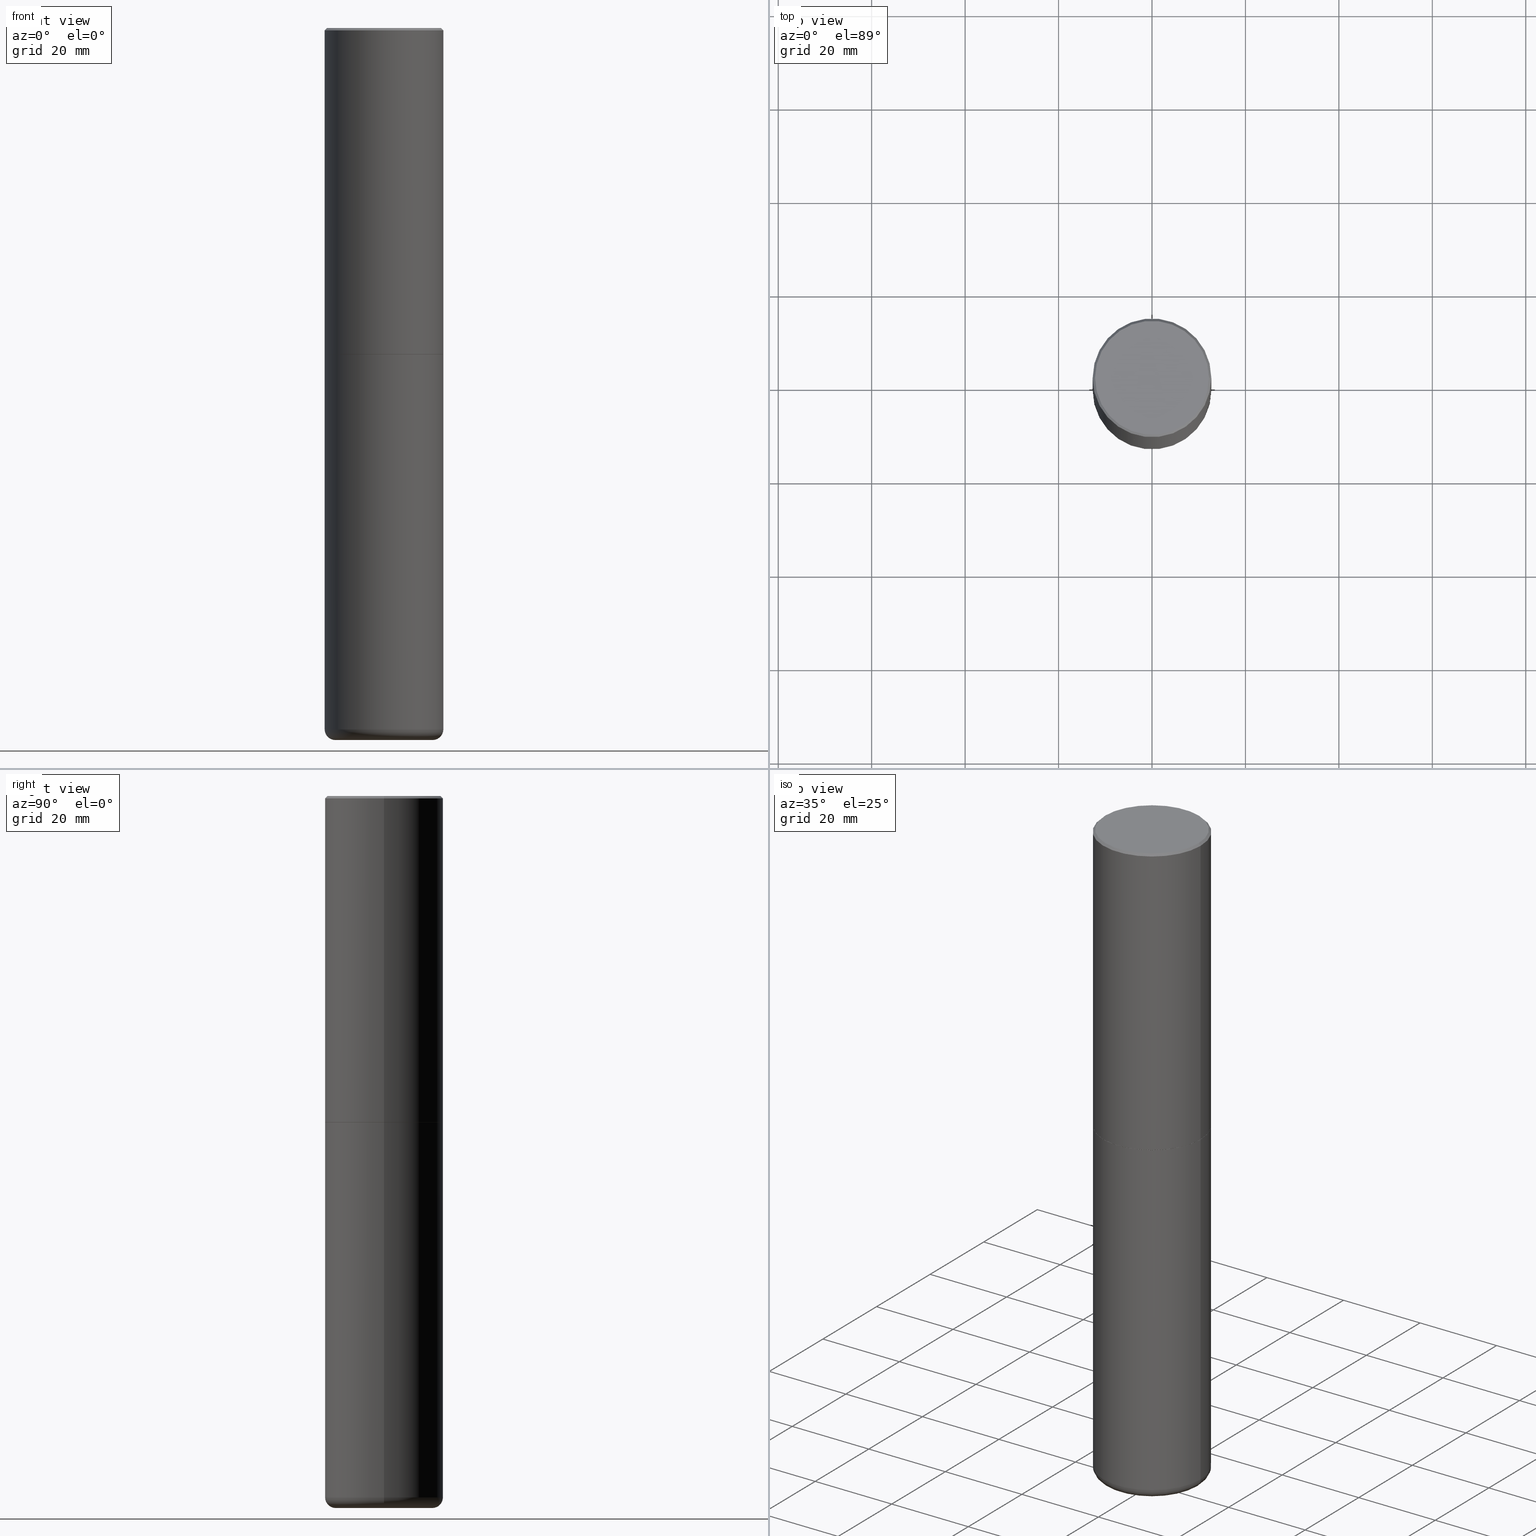
[diagram: canonical four-view strip — front | top / right | iso, engineering-drawing reading convention]
A machine part, canonical four-view strip (front | top / right | iso — engineering-drawing reading convention). The complete STEP part file that produces these views, byte-faithful:
ISO-10303-21;
HEADER;
FILE_DESCRIPTION (( 'STEP AP203' ),
    '1' );
FILE_NAME ('35651.STEP',
    '2022-11-02T20:35:46',
    ( '' ),
    ( '' ),
    'SwSTEP 2.0',
    'SolidWorks 2022',
    '' );
FILE_SCHEMA (( 'CONFIG_CONTROL_DESIGN' ));
ENDSEC;

DATA;
#1 = ORIENTED_EDGE ( 'NONE', *, *, #227, .F. ) ;
#2 = EDGE_LOOP ( 'NONE', ( #228, #397, #401, #3 ) ) ;
#3 = ORIENTED_EDGE ( 'NONE', *, *, #295, .F. ) ;
#4 = CARTESIAN_POINT ( 'NONE',  ( 1.467281283711081734E-28, -2.094888803305886955E-14, -5.999999999999999112 ) ) ;
#5 = VERTEX_POINT ( 'NONE', #353 ) ;
#6 = PLANE ( 'NONE',  #326 ) ;
#7 = EDGE_CURVE ( 'NONE', #250, #310, #482, .T. ) ;
#8 = PERSON_AND_ORGANIZATION_ROLE ( 'creator' ) ;
#9 = ORIENTED_EDGE ( 'NONE', *, *, #119, .F. ) ;
#10 = FACE_OUTER_BOUND ( 'NONE', #418, .T. ) ;
#11 = FACE_OUTER_BOUND ( 'NONE', #380, .T. ) ;
#12 = VERTEX_POINT ( 'NONE', #338 ) ;
#13 = FACE_OUTER_BOUND ( 'NONE', #309, .T. ) ;
#14 = ORIENTED_EDGE ( 'NONE', *, *, #84, .F. ) ;
#15 = FACE_OUTER_BOUND ( 'NONE', #162, .T. ) ;
#16 = LINE ( 'NONE', #364, #232 ) ;
#17 = CALENDAR_DATE ( 2022, 2, 11 ) ;
#18 = CARTESIAN_POINT ( 'NONE',  ( 0.000000000000000000, 0.000000000000000000, 0.000000000000000000 ) ) ;
#19 = EDGE_CURVE ( 'NONE', #236, #433, #411, .T. ) ;
#20 = EDGE_CURVE ( 'NONE', #62, #12, #445, .T. ) ;
#21 = VECTOR ( 'NONE', #52, 39.37007874015747433 ) ;
#22 = CONICAL_SURFACE ( 'NONE', #375, 0.4999999999999990563, 0.7853981633974465026 ) ;
#23 = DIRECTION ( 'NONE',  ( 1.000000000000000000, -6.982962677686265133E-15, 0.000000000000000000 ) ) ;
#24 = ADVANCED_FACE ( 'NONE', ( #362 ), #86, .T. ) ;
#25 = DIRECTION ( 'NONE',  ( -2.445468806185136877E-29, 3.491481338843145188E-15, 1.000000000000000000 ) ) ;
#26 = APPROVAL_ROLE ( '' ) ;
#27 = ORIENTED_EDGE ( 'NONE', *, *, #19, .F. ) ;
#28 = AXIS2_PLACEMENT_3D ( 'NONE', #93, #474, #173 ) ;
#29 = DIRECTION ( 'NONE',  ( -6.982962677686266711E-15, -1.000000000000000000, 3.491481338843145583E-15 ) ) ;
#30 = ORIENTED_EDGE ( 'NONE', *, *, #108, .F. ) ;
#31 = CARTESIAN_POINT ( 'NONE',  ( 1.467281283711081734E-28, -2.094888803305886955E-14, -5.999999999999999112 ) ) ;
#32 = CIRCLE ( 'NONE', #456, 0.5000000000000001110 ) ;
#33 = DIRECTION ( 'NONE',  ( 1.000000000000000000, -6.982962677686266711E-15, 0.000000000000000000 ) ) ;
#34 = AXIS2_PLACEMENT_3D ( 'NONE', #128, #167, #442 ) ;
#35 = ORIENTED_EDGE ( 'NONE', *, *, #100, .F. ) ;
#36 = AXIS2_PLACEMENT_3D ( 'NONE', #488, #150, #78 ) ;
#37 = CARTESIAN_POINT ( 'NONE',  ( 4.890937612370318701E-31, -6.982962677686356937E-17, -0.02000000000000018777 ) ) ;
#38 = ORIENTED_EDGE ( 'NONE', *, *, #100, .T. ) ;
#39 = ORIENTED_EDGE ( 'NONE', *, *, #20, .F. ) ;
#40 = ADVANCED_FACE ( 'NONE', ( #133 ), #382, .F. ) ;
#41 = ORIENTED_EDGE ( 'NONE', *, *, #480, .F. ) ;
#42 = APPROVAL_ROLE ( '' ) ;
#43 = DIRECTION ( 'NONE',  ( -2.445468806185136597E-29, 3.491481338843145583E-15, 1.000000000000000000 ) ) ;
#44 = CARTESIAN_POINT ( 'NONE',  ( 1.445272902499044541E-28, -2.063466667760496652E-14, -5.910003426924223646 ) ) ;
#45 = CC_DESIGN_PERSON_AND_ORGANIZATION_ASSIGNMENT ( #296, #226, ( #139 ) ) ;
#46 = CARTESIAN_POINT ( 'NONE',  ( 0.000000000000000000, 0.000000000000000000, 0.000000000000000000 ) ) ;
#47 = LOCAL_TIME ( 16, 35, 46.00000000000000000, #181 ) ;
#48 = DIRECTION ( 'NONE',  ( -2.445468806185136597E-29, 3.491481338843145583E-15, 1.000000000000000000 ) ) ;
#49 = CARTESIAN_POINT ( 'NONE',  ( 1.467167470649067006E-28, -2.094726308416916987E-14, -5.999534596140719600 ) ) ;
#50 = LOCAL_TIME ( 16, 35, 46.00000000000000000, #189 ) ;
#51 = ORIENTED_EDGE ( 'NONE', *, *, #258, .T. ) ;
#52 = DIRECTION ( 'NONE',  ( 0.9993908270190957621, -6.978169709227547799E-15, -0.03489949670250264147 ) ) ;
#53 = DIRECTION ( 'NONE',  ( 2.445468806185136597E-29, -3.491481338843145583E-15, -1.000000000000000000 ) ) ;
#54 = CARTESIAN_POINT ( 'NONE',  ( -0.4999999999999990563, 3.421651712066263352E-15, -0.02000000000000018777 ) ) ;
#55 = DIRECTION ( 'NONE',  ( -2.445468806185136597E-29, 3.491481338843145583E-15, 1.000000000000000000 ) ) ;
#56 = CIRCLE ( 'NONE', #216, 0.4989999999999999991 ) ;
#57 = AXIS2_PLACEMENT_3D ( 'NONE', #290, #487, #265 ) ;
#58 = CARTESIAN_POINT ( 'NONE',  ( 0.4999999999999995004, -3.491481338843130200E-15, 2.438088387897965374E-29 ) ) ;
#59 = CARTESIAN_POINT ( 'NONE',  ( 0.000000000000000000, 0.000000000000000000, 0.000000000000000000 ) ) ;
#60 = AXIS2_PLACEMENT_3D ( 'NONE', #88, #48, #301 ) ;
#61 = CIRCLE ( 'NONE', #136, 0.4999999999999990563 ) ;
#62 = VERTEX_POINT ( 'NONE', #241 ) ;
#63 = DIRECTION ( 'NONE',  ( -2.445468806185136597E-29, 3.491481338843145583E-15, 1.000000000000000000 ) ) ;
#64 = COORDINATED_UNIVERSAL_TIME_OFFSET ( 5, 0, .BEHIND. ) ;
#65 = ADVANCED_FACE ( 'NONE', ( #156 ), #471, .T. ) ;
#66 = VERTEX_POINT ( 'NONE', #333 ) ;
#67 = AXIS2_PLACEMENT_3D ( 'NONE', #404, #211, #360 ) ;
#68 = APPROVAL_PERSON_ORGANIZATION ( #190, #220, #26 ) ;
#69 = CC_DESIGN_PERSON_AND_ORGANIZATION_ASSIGNMENT ( #115, #462, ( #272 ) ) ;
#70 = CALENDAR_DATE ( 2022, 2, 11 ) ;
#71 = PRODUCT_DEFINITION_SHAPE ( 'NONE', 'NONE',  #187 ) ;
#72 = EDGE_LOOP ( 'NONE', ( #120, #169, #35 ) ) ;
#73 = DIRECTION ( 'NONE',  ( 0.7071067811865462405, -7.319954787623251312E-15, -0.7071067811865487940 ) ) ;
#74 = CIRCLE ( 'NONE', #432, 0.4999999999999990563 ) ;
#75 = ORIENTED_EDGE ( 'NONE', *, *, #337, .F. ) ;
#76 = ORIENTED_EDGE ( 'NONE', *, *, #237, .T. ) ;
#77 = CIRCLE ( 'NONE', #293, 0.5000000000000000000 ) ;
#78 = DIRECTION ( 'NONE',  ( 1.000000000000000000, -6.982962677686265133E-15, 4.883557194083112340E-29 ) ) ;
#79 = ORIENTED_EDGE ( 'NONE', *, *, #287, .T. ) ;
#80 = DATE_TIME_ROLE ( 'classification_date' ) ;
#81 = CARTESIAN_POINT ( 'NONE',  ( 4.890937612370318701E-31, -6.982962677686356937E-17, -0.02000000000000018777 ) ) ;
#82 = DIRECTION ( 'NONE',  ( 1.000000000000000000, -6.982962677686269077E-15, 0.000000000000000000 ) ) ;
#83 = ADVANCED_FACE ( 'NONE', ( #317 ), #291, .T. ) ;
#84 = EDGE_CURVE ( 'NONE', #383, #466, #137, .T. ) ;
#85 = ORIENTED_EDGE ( 'NONE', *, *, #335, .T. ) ;
#86 = CYLINDRICAL_SURFACE ( 'NONE', #28, 0.4999999999999995004 ) ;
#87 = DIRECTION ( 'NONE',  ( 7.105427357601001859E-15, 1.000000000000000000, -3.491481338843145583E-15 ) ) ;
#88 = CARTESIAN_POINT ( 'NONE',  ( 1.467167470649067006E-28, -2.094726308416916987E-14, -5.999534596140719600 ) ) ;
#89 = LINE ( 'NONE', #409, #428 ) ;
#90 = APPROVAL_DATE_TIME ( #180, #434 ) ;
#91 = VECTOR ( 'NONE', #410, 39.37007874015747433 ) ;
#92 = ORIENTED_EDGE ( 'NONE', *, *, #341, .T. ) ;
#93 = CARTESIAN_POINT ( 'NONE',  ( 0.000000000000000000, 0.000000000000000000, 0.000000000000000000 ) ) ;
#94 = EDGE_CURVE ( 'NONE', #213, #236, #107, .T. ) ;
#95 = FACE_OUTER_BOUND ( 'NONE', #246, .T. ) ;
#96 = CARTESIAN_POINT ( 'NONE',  ( 3.351822085289400054E-15, 0.4799999999999989275, -1.669508273909555500E-15 ) ) ;
#97 = CIRCLE ( 'NONE', #314, 0.09000000000000060729 ) ;
#98 = PERSON ( 'UNSPECIFIED', 'UNSPECIFIED', 'UNSPECIFIED', ('UNSPECIFIED'), ('UNSPECIFIED'), ('UNSPECIFIED') ) ;
#99 = DIRECTION ( 'NONE',  ( 1.000000000000000000, -6.982962677686267499E-15, 4.876176775795935793E-29 ) ) ;
#100 = EDGE_CURVE ( 'NONE', #390, #213, #460, .T. ) ;
#101 = AXIS2_PLACEMENT_3D ( 'NONE', #284, #289, #23 ) ;
#102 = VECTOR ( 'NONE', #25, 39.37007874015748143 ) ;
#103 = APPROVAL_PERSON_ORGANIZATION ( #245, #434, #42 ) ;
#104 = CARTESIAN_POINT ( 'NONE',  ( 0.4100000000000003642, -2.349768137545633650E-14, -5.910003426924223646 ) ) ;
#105 = DIRECTION ( 'NONE',  ( -0.9999619230641714207, 6.952228252019259966E-15, -0.008726535498348361383 ) ) ;
#106 = ORIENTED_EDGE ( 'NONE', *, *, #414, .T. ) ;
#107 = LINE ( 'NONE', #363, #448 ) ;
#108 = EDGE_CURVE ( 'NONE', #66, #383, #324, .T. ) ;
#109 = AXIS2_PLACEMENT_3D ( 'NONE', #174, #171, #320 ) ;
#110 = CIRCLE ( 'NONE', #125, 0.4799999999999989275 ) ;
#111 = AXIS2_PLACEMENT_3D ( 'NONE', #161, #172, #281 ) ;
#112 = EDGE_LOOP ( 'NONE', ( #79, #85, #282, #422 ) ) ;
#113 = EDGE_CURVE ( 'NONE', #385, #390, #355, .T. ) ;
#114 = DIRECTION ( 'NONE',  ( -2.445468806185136597E-29, 3.491481338843145583E-15, 1.000000000000000000 ) ) ;
#115 = PERSON_AND_ORGANIZATION ( #98, #251 ) ;
#116 = AXIS2_PLACEMENT_3D ( 'NONE', #403, #87, #276 ) ;
#117 = ADVANCED_FACE ( 'NONE', ( #11 ), #329, .F. ) ;
#118 = LINE ( 'NONE', #155, #489 ) ;
#119 = EDGE_CURVE ( 'NONE', #5, #62, #450, .T. ) ;
#120 = ORIENTED_EDGE ( 'NONE', *, *, #113, .F. ) ;
#121 = CARTESIAN_POINT ( 'NONE',  ( 6.722593748202942280E-29, -9.598082200479810007E-15, -2.749000000000000554 ) ) ;
#122 = FACE_OUTER_BOUND ( 'NONE', #72, .T. ) ;
#123 = ORIENTED_EDGE ( 'NONE', *, *, #124, .F. ) ;
#124 = EDGE_CURVE ( 'NONE', #385, #213, #248, .T. ) ;
#125 = AXIS2_PLACEMENT_3D ( 'NONE', #332, #490, #218 ) ;
#126 = DIRECTION ( 'NONE',  ( 1.000000000000000000, -6.982962677686269077E-15, 0.000000000000000000 ) ) ;
#127 = ORIENTED_EDGE ( 'NONE', *, *, #492, .T. ) ;
#128 = CARTESIAN_POINT ( 'NONE',  ( 3.491481338843200408E-15, 0.4999999999999903411, -2.750000000000002220 ) ) ;
#129 = DIRECTION ( 'NONE',  ( -2.445468806185136597E-29, 3.491481338843145583E-15, 1.000000000000000000 ) ) ;
#130 = ORIENTED_EDGE ( 'NONE', *, *, #369, .F. ) ;
#131 = CYLINDRICAL_SURFACE ( 'NONE', #305, 0.4999999999999995004 ) ;
#132 = EDGE_CURVE ( 'NONE', #433, #236, #372, .T. ) ;
#133 = FACE_OUTER_BOUND ( 'NONE', #452, .T. ) ;
#134 = DIRECTION ( 'NONE',  ( -1.000000000000000000, 6.982962677686266711E-15, 0.000000000000000000 ) ) ;
#135 = DIRECTION ( 'NONE',  ( 1.000000000000000000, -6.982962677686265133E-15, 0.000000000000000000 ) ) ;
#136 = AXIS2_PLACEMENT_3D ( 'NONE', #37, #199, #203 ) ;
#137 = LINE ( 'NONE', #145, #330 ) ;
#138 = ADVANCED_FACE ( 'NONE', ( #15 ), #475, .T. ) ;
#139 = PRODUCT ( '35651', '35651', '', ( #300 ) ) ;
#140 = CLOSED_SHELL ( 'NONE', ( #147, #141, #138, #468, #24, #83, #312, #298 ) ) ;
#141 = ADVANCED_FACE ( 'NONE', ( #322 ), #131, .T. ) ;
#142 = CIRCLE ( 'NONE', #461, 0.5000000000000000000 ) ;
#143 = CALENDAR_DATE ( 2022, 2, 11 ) ;
#144 = DIRECTION ( 'NONE',  ( 1.000000000000000000, -6.982962677686264344E-15, 0.000000000000000000 ) ) ;
#145 = CARTESIAN_POINT ( 'NONE',  ( -0.4989999999999999991, -6.055965430375753882E-15, -2.750000000000000888 ) ) ;
#146 = PERSON_AND_ORGANIZATION ( #98, #251 ) ;
#147 = ADVANCED_FACE ( 'NONE', ( #95 ), #367, .T. ) ;
#148 = AXIS2_PLACEMENT_3D ( 'NONE', #252, #476, #294 ) ;
#149 = FACE_OUTER_BOUND ( 'NONE', #2, .T. ) ;
#150 = DIRECTION ( 'NONE',  ( -2.445468806185136597E-29, 3.491481338843145583E-15, 1.000000000000000000 ) ) ;
#151 = AXIS2_PLACEMENT_3D ( 'NONE', #44, #323, #126 ) ;
#152 = MANIFOLD_SOLID_BREP ( 'Body-Move/Copy2[2]', #140 ) ;
#153 = DIRECTION ( 'NONE',  ( -2.445468806185136597E-29, 3.491481338843145583E-15, 1.000000000000000000 ) ) ;
#154 = CC_DESIGN_DATE_AND_TIME_ASSIGNMENT ( #416, #420, ( #187 ) ) ;
#155 = CARTESIAN_POINT ( 'NONE',  ( 0.4092146118051471215, -2.375630405800693736E-14, -5.999999999999999112 ) ) ;
#156 = FACE_OUTER_BOUND ( 'NONE', #315, .T. ) ;
#157 = EDGE_LOOP ( 'NONE', ( #130, #469, #196, #444 ) ) ;
#158 = CARTESIAN_POINT ( 'NONE',  ( 6.725039217009127883E-29, -9.601573681818654592E-15, -2.750000000000000888 ) ) ;
#159 = ORIENTED_EDGE ( 'NONE', *, *, #227, .T. ) ;
#160 = LENGTH_MEASURE_WITH_UNIT ( LENGTH_MEASURE( 0.02539999999999999897 ), #472 );
#161 = CARTESIAN_POINT ( 'NONE',  ( 1.467167470649067006E-28, -2.094726308416916987E-14, -5.999534596140719600 ) ) ;
#162 = EDGE_LOOP ( 'NONE', ( #75, #76, #386, #201 ) ) ;
#163 = ORIENTED_EDGE ( 'NONE', *, *, #231, .T. ) ;
#164 = DIRECTION ( 'NONE',  ( -2.445468806185136877E-29, 3.491481338843145188E-15, 1.000000000000000000 ) ) ;
#165 = CARTESIAN_POINT ( 'NONE',  ( 6.725039217009127883E-29, -9.601573681818654592E-15, -2.750000000000000888 ) ) ;
#166 = EDGE_LOOP ( 'NONE', ( #269, #407, #393, #306 ) ) ;
#167 = DIRECTION ( 'NONE',  ( 2.438088387897960049E-29, -3.491481338843145188E-15, -1.000000000000000000 ) ) ;
#168 = DIRECTION ( 'NONE',  ( -1.000000000000000000, 6.982962677686269866E-15, 0.000000000000000000 ) ) ;
#169 = ORIENTED_EDGE ( 'NONE', *, *, #124, .T. ) ;
#170 = CC_DESIGN_PERSON_AND_ORGANIZATION_ASSIGNMENT ( #451, #302, ( #187 ) ) ;
#171 = DIRECTION ( 'NONE',  ( 2.445468806185136597E-29, -3.491481338843145583E-15, -1.000000000000000000 ) ) ;
#172 = DIRECTION ( 'NONE',  ( 2.445468806185136597E-29, -3.491481338843145583E-15, -1.000000000000000000 ) ) ;
#173 = DIRECTION ( 'NONE',  ( 1.000000000000000000, -6.982962677686267499E-15, 4.876176775795935793E-29 ) ) ;
#174 = CARTESIAN_POINT ( 'NONE',  ( 4.890937612370318701E-31, -6.982962677686356937E-17, -0.02000000000000018777 ) ) ;
#175 = DIRECTION ( 'NONE',  ( 0.7071067811864267805, -2.468850131080992517E-15, 0.7071067811866682540 ) ) ;
#176 = AXIS2_PLACEMENT_3D ( 'NONE', #31, #153, #270 ) ;
#177 = DATE_AND_TIME ( #17, #308 ) ;
#178 = CIRCLE ( 'NONE', #116, 0.09000000000000060729 ) ;
#179 = CARTESIAN_POINT ( 'NONE',  ( -0.3558846118051471330, -1.846213412237096104E-14, -5.999534596140719600 ) ) ;
#180 = DATE_AND_TIME ( #70, #47 ) ;
#181 = COORDINATED_UNIVERSAL_TIME_OFFSET ( 5, 0, .BEHIND. ) ;
#182 = APPLICATION_PROTOCOL_DEFINITION ( 'international standard', 'config_control_design', 1994, #207 ) ;
#183 = CALENDAR_DATE ( 2022, 2, 11 ) ;
#184 = SECURITY_CLASSIFICATION ( '', '', #479 ) ;
#185 =( NAMED_UNIT ( * ) SI_UNIT ( $, .STERADIAN. ) SOLID_ANGLE_UNIT ( ) );
#186 = DATE_AND_TIME ( #183, #50 ) ;
#187 = PRODUCT_DEFINITION ( 'UNKNOWN', '', #272, #266 ) ;
#188 = CARTESIAN_POINT ( 'NONE',  ( 0.3558846118051471330, -2.338880875089607986E-14, -5.999534596140719600 ) ) ;
#189 = COORDINATED_UNIVERSAL_TIME_OFFSET ( 5, 0, .BEHIND. ) ;
#190 = PERSON_AND_ORGANIZATION ( #98, #251 ) ;
#191 = DIRECTION ( 'NONE',  ( -0.7071067811865462405, 2.468850131082243256E-15, -0.7071067811865487940 ) ) ;
#192 = VECTOR ( 'NONE', #283, 39.37007874015748143 ) ;
#193 = EDGE_LOOP ( 'NONE', ( #106, #319 ) ) ;
#194 = DIRECTION ( 'NONE',  ( 0.9999619230641714207, -6.890705306874752753E-15, -0.008726535498348361383 ) ) ;
#195 = ORIENTED_EDGE ( 'NONE', *, *, #108, .T. ) ;
#196 = ORIENTED_EDGE ( 'NONE', *, *, #119, .T. ) ;
#197 = AXIS2_PLACEMENT_3D ( 'NONE', #441, #114, #429 ) ;
#198 = DIRECTION ( 'NONE',  ( -2.445468806185136597E-29, 3.491481338843145583E-15, 1.000000000000000000 ) ) ;
#199 = DIRECTION ( 'NONE',  ( -2.445468806185136597E-29, 3.491481338843145583E-15, 1.000000000000000000 ) ) ;
#200 = EDGE_CURVE ( 'NONE', #437, #310, #74, .T. ) ;
#201 = ORIENTED_EDGE ( 'NONE', *, *, #7, .F. ) ;
#202 = CARTESIAN_POINT ( 'NONE',  ( -0.5000000000000000000, -1.281242234827831779E-15, -2.749000000000000554 ) ) ;
#203 = DIRECTION ( 'NONE',  ( 1.000000000000000000, -6.982962677686266711E-15, 0.000000000000000000 ) ) ;
#204 = ORIENTED_EDGE ( 'NONE', *, *, #414, .F. ) ;
#205 = CARTESIAN_POINT ( 'NONE',  ( 6.725039217009125641E-29, -9.601573681818653015E-15, -2.750000000000000444 ) ) ;
#206 = CARTESIAN_POINT ( 'NONE',  ( 1.445272902499044541E-28, -2.063466667760496652E-14, -5.910003426924223646 ) ) ;
#207 = APPLICATION_CONTEXT ( 'configuration controlled 3d designs of mechanical parts and assemblies' ) ;
#208 = CC_DESIGN_PERSON_AND_ORGANIZATION_ASSIGNMENT ( #259, #365, ( #184 ) ) ;
#209 = CC_DESIGN_APPROVAL ( #220, ( #187 ) ) ;
#210 = DIRECTION ( 'NONE',  ( -2.445468806185136597E-29, 3.491481338843145583E-15, 1.000000000000000000 ) ) ;
#211 = DIRECTION ( 'NONE',  ( -2.445468806185136597E-29, 3.491481338843145583E-15, 1.000000000000000000 ) ) ;
#212 = DIRECTION ( 'NONE',  ( 1.000000000000000000, -6.982962677686269866E-15, 0.000000000000000000 ) ) ;
#213 = VERTEX_POINT ( 'NONE', #179 ) ;
#214 = DIRECTION ( 'NONE',  ( -2.445468806185136597E-29, 3.491481338843145583E-15, 1.000000000000000000 ) ) ;
#215 = DIRECTION ( 'NONE',  ( 1.000000000000000000, -6.982962677686266711E-15, 0.000000000000000000 ) ) ;
#216 = AXIS2_PLACEMENT_3D ( 'NONE', #158, #425, #273 ) ;
#217 = CONICAL_SURFACE ( 'NONE', #111, 0.3558846118051471330, 1.535889741755008364 ) ;
#218 = DIRECTION ( 'NONE',  ( 1.000000000000000000, -6.982962677686266711E-15, 4.876036955247140054E-29 ) ) ;
#219 = DIRECTION ( 'NONE',  ( -0.7071067811864267805, 7.493145998869918709E-15, 0.7071067811866682540 ) ) ;
#220 = APPROVAL ( #336, 'UNSPECIFIED' ) ;
#221 = TOROIDAL_SURFACE ( 'NONE', #197, 0.4100000000000003642, 0.09000000000000064893 ) ;
#222 = CC_DESIGN_SECURITY_CLASSIFICATION ( #184, ( #272 ) ) ;
#223 = ORIENTED_EDGE ( 'NONE', *, *, #267, .F. ) ;
#224 = APPROVAL_STATUS ( 'not_yet_approved' ) ;
#225 = FACE_OUTER_BOUND ( 'NONE', #242, .T. ) ;
#226 = PERSON_AND_ORGANIZATION_ROLE ( 'design_owner' ) ;
#227 = EDGE_CURVE ( 'NONE', #383, #66, #56, .T. ) ;
#228 = ORIENTED_EDGE ( 'NONE', *, *, #492, .F. ) ;
#229 = CARTESIAN_POINT ( 'NONE',  ( -0.4989999999999999991, -6.050666976027531480E-15, -2.750000000000000888 ) ) ;
#230 = DIRECTION ( 'NONE',  ( 1.000000000000000000, -6.982962677686266711E-15, 4.876176775795935793E-29 ) ) ;
#231 = EDGE_CURVE ( 'NONE', #390, #433, #118, .T. ) ;
#232 = VECTOR ( 'NONE', #73, 39.37007874015748143 ) ;
#233 = CARTESIAN_POINT ( 'NONE',  ( 6.725039217009125641E-29, -9.601573681818653015E-15, -2.750000000000000444 ) ) ;
#234 = ADVANCED_FACE ( 'NONE', ( #225 ), #278, .T. ) ;
#235 = DIMENSIONAL_EXPONENTS ( 1.000000000000000000, 0.000000000000000000, 0.000000000000000000, 0.000000000000000000, 0.000000000000000000, 0.000000000000000000, 0.000000000000000000 ) ;
#236 = VERTEX_POINT ( 'NONE', #378 ) ;
#237 = EDGE_CURVE ( 'NONE', #348, #437, #16, .T. ) ;
#238 = DIRECTION ( 'NONE',  ( -2.445468806185136597E-29, 3.491481338843145583E-15, 1.000000000000000000 ) ) ;
#239 = CONICAL_SURFACE ( 'NONE', #57, 0.4092146118051471215, 1.562069680534950544 ) ;
#240 = EDGE_LOOP ( 'NONE', ( #30, #1 ) ) ;
#241 = CARTESIAN_POINT ( 'NONE',  ( 0.5000000000000000000, -1.309305502066178637E-14, -2.750000000000000444 ) ) ;
#242 = EDGE_LOOP ( 'NONE', ( #440, #127, #223, #349 ) ) ;
#243 = CARTESIAN_POINT ( 'NONE',  ( -0.4799999999999989275, 3.386736898677831703E-15, 1.280553747027767124E-17 ) ) ;
#244 = ORIENTED_EDGE ( 'NONE', *, *, #267, .T. ) ;
#245 = PERSON_AND_ORGANIZATION ( #98, #251 ) ;
#246 = EDGE_LOOP ( 'NONE', ( #195, #261, #455, #313 ) ) ;
#247 = CYLINDRICAL_SURFACE ( 'NONE', #328, 0.5000000000000000000 ) ;
#248 = LINE ( 'NONE', #415, #91 ) ;
#249 = CARTESIAN_POINT ( 'NONE',  ( -0.5000000000000001110, -1.156540650091130647E-14, -5.910003426924223646 ) ) ;
#250 = VERTEX_POINT ( 'NONE', #243 ) ;
#251 = ORGANIZATION ( 'UNSPECIFIED', 'UNSPECIFIED', '' ) ;
#252 = CARTESIAN_POINT ( 'NONE',  ( 6.725039217009127883E-29, -9.601573681818654592E-15, -2.750000000000000888 ) ) ;
#253 = CARTESIAN_POINT ( 'NONE',  ( 4.890937612370318701E-31, -6.982962677686356937E-17, -0.02000000000000018777 ) ) ;
#254 = CC_DESIGN_DATE_AND_TIME_ASSIGNMENT ( #177, #80, ( #184 ) ) ;
#255 = AXIS2_PLACEMENT_3D ( 'NONE', #233, #342, #33 ) ;
#256 = AXIS2_PLACEMENT_3D ( 'NONE', #121, #198, #391 ) ;
#257 = ADVANCED_BREP_SHAPE_REPRESENTATION ( '35651', ( #481, #152, #449 ), #384 ) ;
#258 = EDGE_CURVE ( 'NONE', #66, #427, #89, .T. ) ;
#259 = PERSON_AND_ORGANIZATION ( #98, #251 ) ;
#260 = CARTESIAN_POINT ( 'NONE',  ( 0.5000000000000000000, -3.491481338843133355E-15, 2.438088387897967896E-29 ) ) ;
#261 = ORIENTED_EDGE ( 'NONE', *, *, #84, .T. ) ;
#262 = COORDINATED_UNIVERSAL_TIME_OFFSET ( 5, 0, .BEHIND. ) ;
#263 = AXIS2_PLACEMENT_3D ( 'NONE', #426, #43, #402 ) ;
#264 = ORIENTED_EDGE ( 'NONE', *, *, #303, .T. ) ;
#265 = DIRECTION ( 'NONE',  ( -1.000000000000000000, 6.982962677686265922E-15, 0.000000000000000000 ) ) ;
#266 = DESIGN_CONTEXT ( 'detailed design', #387, 'design' ) ;
#267 = EDGE_CURVE ( 'NONE', #5, #279, #436, .T. ) ;
#268 = CARTESIAN_POINT ( 'NONE',  ( -0.5000000000000000000, 3.552713678800500929E-15, -2.459467545127452891E-29 ) ) ;
#269 = ORIENTED_EDGE ( 'NONE', *, *, #335, .F. ) ;
#270 = DIRECTION ( 'NONE',  ( 1.000000000000000000, -6.982962677686265922E-15, 0.000000000000000000 ) ) ;
#271 = CLOSED_SHELL ( 'NONE', ( #40, #234, #65, #307, #286, #117, #343, #318, #316 ) ) ;
#272 = PRODUCT_DEFINITION_FORMATION_WITH_SPECIFIED_SOURCE ( 'ANY', '', #139, .NOT_KNOWN. ) ;
#273 = DIRECTION ( 'NONE',  ( 1.000000000000000000, -6.982962677686265133E-15, 0.000000000000000000 ) ) ;
#274 = ORIENTED_EDGE ( 'NONE', *, *, #292, .F. ) ;
#275 = DIRECTION ( 'NONE',  ( -1.000000000000000000, 6.982962677686265922E-15, 0.000000000000000000 ) ) ;
#276 = DIRECTION ( 'NONE',  ( -1.000000000000000000, 7.105427357601006592E-15, 0.000000000000000000 ) ) ;
#277 = DIRECTION ( 'NONE',  ( -1.000000000000000000, 6.982962677686265922E-15, -4.876176775795935793E-29 ) ) ;
#278 = TOROIDAL_SURFACE ( 'NONE', #36, 0.4100000000000003642, 0.09000000000000064893 ) ;
#279 = VERTEX_POINT ( 'NONE', #249 ) ;
#280 = DIRECTION ( 'NONE',  ( -2.445468806185136597E-29, 3.491481338843145583E-15, 1.000000000000000000 ) ) ;
#281 = DIRECTION ( 'NONE',  ( -1.000000000000000000, 6.982962677686269866E-15, 0.000000000000000000 ) ) ;
#282 = ORIENTED_EDGE ( 'NONE', *, *, #200, .F. ) ;
#283 = DIRECTION ( 'NONE',  ( -2.445468806185136877E-29, 3.491481338843145188E-15, 1.000000000000000000 ) ) ;
#284 = CARTESIAN_POINT ( 'NONE',  ( 6.725039217009127883E-29, -9.601573681818654592E-15, -2.750000000000000888 ) ) ;
#285 = PLANE ( 'NONE',  #346 ) ;
#286 = ADVANCED_FACE ( 'NONE', ( #122 ), #412, .F. ) ;
#287 = EDGE_CURVE ( 'NONE', #427, #466, #77, .T. ) ;
#288 = ORIENTED_EDGE ( 'NONE', *, *, #94, .F. ) ;
#289 = DIRECTION ( 'NONE',  ( -2.445468806185136597E-29, 3.491481338843145583E-15, 1.000000000000000000 ) ) ;
#290 = CARTESIAN_POINT ( 'NONE',  ( 1.467281283711081734E-28, -2.094888803305886955E-14, -5.999999999999999112 ) ) ;
#291 = CONICAL_SURFACE ( 'NONE', #101, 0.4989999999999999991, 0.7853981633972775267 ) ;
#292 = EDGE_CURVE ( 'NONE', #213, #390, #421, .T. ) ;
#293 = AXIS2_PLACEMENT_3D ( 'NONE', #473, #238, #477 ) ;
#294 = DIRECTION ( 'NONE',  ( 1.000000000000000000, -6.982962677686265133E-15, 0.000000000000000000 ) ) ;
#295 = EDGE_CURVE ( 'NONE', #279, #5, #32, .T. ) ;
#296 = PERSON_AND_ORGANIZATION ( #98, #251 ) ;
#297 = AXIS2_PLACEMENT_3D ( 'NONE', #4, #389, #275 ) ;
#298 = ADVANCED_FACE ( 'NONE', ( #395 ), #285, .F. ) ;
#299 = DATE_AND_TIME ( #374, #357 ) ;
#300 = MECHANICAL_CONTEXT ( 'NONE', #207, 'mechanical' ) ;
#301 = DIRECTION ( 'NONE',  ( 1.000000000000000000, -6.982962677686269866E-15, 0.000000000000000000 ) ) ;
#302 = PERSON_AND_ORGANIZATION_ROLE ( 'creator' ) ;
#303 = EDGE_CURVE ( 'NONE', #310, #437, #61, .T. ) ;
#304 = CARTESIAN_POINT ( 'NONE',  ( 0.4999999999999990563, -3.500078625662622374E-15, -0.02000000000000018777 ) ) ;
#305 = AXIS2_PLACEMENT_3D ( 'NONE', #59, #446, #99 ) ;
#306 = ORIENTED_EDGE ( 'NONE', *, *, #303, .F. ) ;
#307 = ADVANCED_FACE ( 'NONE', ( #13 ), #217, .F. ) ;
#308 = LOCAL_TIME ( 16, 35, 46.00000000000000000, #325 ) ;
#309 = EDGE_LOOP ( 'NONE', ( #123, #464, #274 ) ) ;
#310 = VERTEX_POINT ( 'NONE', #465 ) ;
#311 =( CONVERSION_BASED_UNIT ( 'INCH', #160 ) LENGTH_UNIT ( ) NAMED_UNIT ( #235 ) );
#312 = ADVANCED_FACE ( 'NONE', ( #352 ), #6, .F. ) ;
#313 = ORIENTED_EDGE ( 'NONE', *, *, #258, .F. ) ;
#314 = AXIS2_PLACEMENT_3D ( 'NONE', #104, #29, #144 ) ;
#315 = EDGE_LOOP ( 'NONE', ( #244, #347, #39, #9 ) ) ;
#316 = ADVANCED_FACE ( 'NONE', ( #356 ), #239, .F. ) ;
#317 = FACE_OUTER_BOUND ( 'NONE', #431, .T. ) ;
#318 = ADVANCED_FACE ( 'NONE', ( #149 ), #221, .T. ) ;
#319 = ORIENTED_EDGE ( 'NONE', *, *, #337, .T. ) ;
#320 = DIRECTION ( 'NONE',  ( -1.000000000000000000, 6.982962677686266711E-15, 0.000000000000000000 ) ) ;
#321 = DIRECTION ( 'NONE',  ( -2.438088387897960049E-29, 3.491481338843145188E-15, 1.000000000000000000 ) ) ;
#322 = FACE_OUTER_BOUND ( 'NONE', #112, .T. ) ;
#323 = DIRECTION ( 'NONE',  ( -2.445468806185136597E-29, 3.491481338843145583E-15, 1.000000000000000000 ) ) ;
#324 = CIRCLE ( 'NONE', #344, 0.4989999999999999991 ) ;
#325 = COORDINATED_UNIVERSAL_TIME_OFFSET ( 5, 0, .BEHIND. ) ;
#326 = AXIS2_PLACEMENT_3D ( 'NONE', #165, #321, #400 ) ;
#327 = CC_DESIGN_APPROVAL ( #434, ( #184 ) ) ;
#328 = AXIS2_PLACEMENT_3D ( 'NONE', #46, #210, #230 ) ;
#329 = PLANE ( 'NONE',  #34 ) ;
#330 = VECTOR ( 'NONE', #219, 39.37007874015748143 ) ;
#331 = CC_DESIGN_APPROVAL ( #459, ( #272 ) ) ;
#332 = CARTESIAN_POINT ( 'NONE',  ( -3.131554243005659264E-46, 4.471029511141341874E-32, 1.280553747030123384E-17 ) ) ;
#333 = CARTESIAN_POINT ( 'NONE',  ( 0.4989999999999999991, -1.308607205798410036E-14, -2.750000000000000888 ) ) ;
#334 = APPROVAL_DATE_TIME ( #186, #459 ) ;
#335 = EDGE_CURVE ( 'NONE', #466, #310, #399, .T. ) ;
#336 = APPROVAL_STATUS ( 'not_yet_approved' ) ;
#337 = EDGE_CURVE ( 'NONE', #348, #250, #406, .T. ) ;
#338 = CARTESIAN_POINT ( 'NONE',  ( -0.5000000000000000000, -1.156540650091130805E-14, -2.750000000000000444 ) ) ;
#339 = AXIS2_PLACEMENT_3D ( 'NONE', #439, #405, #212 ) ;
#340 = CARTESIAN_POINT ( 'NONE',  ( 0.5000000000000000000, -1.308956353932294336E-14, -2.749000000000000554 ) ) ;
#341 = EDGE_CURVE ( 'NONE', #12, #62, #142, .T. ) ;
#342 = DIRECTION ( 'NONE',  ( -2.445468806185136597E-29, 3.491481338843145583E-15, 1.000000000000000000 ) ) ;
#343 = ADVANCED_FACE ( 'NONE', ( #438 ), #247, .T. ) ;
#344 = AXIS2_PLACEMENT_3D ( 'NONE', #419, #63, #135 ) ;
#345 = ORIENTED_EDGE ( 'NONE', *, *, #237, .F. ) ;
#346 = AXIS2_PLACEMENT_3D ( 'NONE', #96, #361, #277 ) ;
#347 = ORIENTED_EDGE ( 'NONE', *, *, #369, .T. ) ;
#348 = VERTEX_POINT ( 'NONE', #359 ) ;
#349 = ORIENTED_EDGE ( 'NONE', *, *, #424, .F. ) ;
#350 = ORIENTED_EDGE ( 'NONE', *, *, #231, .F. ) ;
#351 = CARTESIAN_POINT ( 'NONE',  ( -0.4999999999999995004, 3.552713678800497379E-15, -2.459467545127450649E-29 ) ) ;
#352 = FACE_OUTER_BOUND ( 'NONE', #240, .T. ) ;
#353 = CARTESIAN_POINT ( 'NONE',  ( 0.5000000000000001110, -2.412614801644810303E-14, -5.910003426924223646 ) ) ;
#354 =( NAMED_UNIT ( * ) PLANE_ANGLE_UNIT ( ) SI_UNIT ( $, .RADIAN. ) );
#355 = LINE ( 'NONE', #373, #21 ) ;
#356 = FACE_OUTER_BOUND ( 'NONE', #394, .T. ) ;
#357 = LOCAL_TIME ( 16, 35, 46.00000000000000000, #64 ) ;
#358 = ORIENTED_EDGE ( 'NONE', *, *, #132, .F. ) ;
#359 = CARTESIAN_POINT ( 'NONE',  ( 0.4799999999999989275, -3.396558832296475394E-15, 1.280553747032483033E-17 ) ) ;
#360 = DIRECTION ( 'NONE',  ( 1.000000000000000000, -6.982962677686265922E-15, 0.000000000000000000 ) ) ;
#361 = DIRECTION ( 'NONE',  ( 2.438088387897960049E-29, -3.491481338843145188E-15, -1.000000000000000000 ) ) ;
#362 = FACE_OUTER_BOUND ( 'NONE', #166, .T. ) ;
#363 = CARTESIAN_POINT ( 'NONE',  ( -0.4092146118051471215, -1.809135767165965469E-14, -5.999999999999999112 ) ) ;
#364 = CARTESIAN_POINT ( 'NONE',  ( 0.4999999999999990563, -3.500078625662622374E-15, -0.02000000000000018777 ) ) ;
#365 = PERSON_AND_ORGANIZATION_ROLE ( 'classification_officer' ) ;
#366 = DIRECTION ( 'NONE',  ( -2.445468806185136877E-29, 3.491481338843145188E-15, 1.000000000000000000 ) ) ;
#367 = CONICAL_SURFACE ( 'NONE', #148, 0.4989999999999999991, 0.7853981633972775267 ) ;
#368 = VECTOR ( 'NONE', #164, 39.37007874015748143 ) ;
#369 = EDGE_CURVE ( 'NONE', #279, #12, #458, .T. ) ;
#370 = DIRECTION ( 'NONE',  ( 0.000000000000000000, 0.000000000000000000, 1.000000000000000000 ) ) ;
#371 = PRODUCT_RELATED_PRODUCT_CATEGORY ( 'detail', '', ( #139 ) ) ;
#372 = CIRCLE ( 'NONE', #67, 0.4092146118051471215 ) ;
#373 = CARTESIAN_POINT ( 'NONE',  ( 0.3558846118051471330, -2.338880875089607986E-14, -5.999534596140719600 ) ) ;
#374 = CALENDAR_DATE ( 2022, 2, 11 ) ;
#375 = AXIS2_PLACEMENT_3D ( 'NONE', #81, #435, #134 ) ;
#376 = CARTESIAN_POINT ( 'NONE',  ( 0.000000000000000000, 0.000000000000000000, 0.000000000000000000 ) ) ;
#377 = APPROVAL_ROLE ( '' ) ;
#378 = CARTESIAN_POINT ( 'NONE',  ( -0.4092146118051471215, -1.756159816700647873E-14, -5.999999999999999112 ) ) ;
#379 = APPLICATION_PROTOCOL_DEFINITION ( 'international standard', 'config_control_design', 1994, #387 ) ;
#380 = EDGE_LOOP ( 'NONE', ( #491, #92 ) ) ;
#381 = CARTESIAN_POINT ( 'NONE',  ( 1.464102224097647998E-28, -2.090424519251506735E-14, -5.987106831646211269 ) ) ;
#382 = CONICAL_SURFACE ( 'NONE', #297, 0.4092146118051471215, 1.562069680534950544 ) ;
#383 = VERTEX_POINT ( 'NONE', #229 ) ;
#384 =( GEOMETRIC_REPRESENTATION_CONTEXT ( 3 ) GLOBAL_UNCERTAINTY_ASSIGNED_CONTEXT ( ( #457 ) ) GLOBAL_UNIT_ASSIGNED_CONTEXT ( ( #311, #354, #185 ) ) REPRESENTATION_CONTEXT ( 'NONE', 'WORKASPACE' ) );
#385 = VERTEX_POINT ( 'NONE', #381 ) ;
#386 = ORIENTED_EDGE ( 'NONE', *, *, #200, .T. ) ;
#387 = APPLICATION_CONTEXT ( 'configuration controlled 3d designs of mechanical parts and assemblies' ) ;
#388 = ORIENTED_EDGE ( 'NONE', *, *, #7, .T. ) ;
#389 = DIRECTION ( 'NONE',  ( 2.445468806185136597E-29, -3.491481338843145583E-15, -1.000000000000000000 ) ) ;
#390 = VERTEX_POINT ( 'NONE', #188 ) ;
#391 = DIRECTION ( 'NONE',  ( 1.000000000000000000, -6.982962677686266711E-15, 0.000000000000000000 ) ) ;
#392 = CIRCLE ( 'NONE', #256, 0.5000000000000000000 ) ;
#393 = ORIENTED_EDGE ( 'NONE', *, *, #443, .T. ) ;
#394 = EDGE_LOOP ( 'NONE', ( #350, #38, #463, #358 ) ) ;
#395 = FACE_OUTER_BOUND ( 'NONE', #193, .T. ) ;
#396 = CC_DESIGN_PERSON_AND_ORGANIZATION_ASSIGNMENT ( #484, #8, ( #272 ) ) ;
#397 = ORIENTED_EDGE ( 'NONE', *, *, #19, .T. ) ;
#398 = APPROVAL_STATUS ( 'not_yet_approved' ) ;
#399 = LINE ( 'NONE', #351, #368 ) ;
#400 = DIRECTION ( 'NONE',  ( 1.000000000000000000, -6.982962677686265922E-15, 4.876176775795935793E-29 ) ) ;
#401 = ORIENTED_EDGE ( 'NONE', *, *, #424, .T. ) ;
#402 = DIRECTION ( 'NONE',  ( 1.000000000000000000, -6.982962677686266711E-15, 4.876036955247140054E-29 ) ) ;
#403 = CARTESIAN_POINT ( 'NONE',  ( -0.4100000000000003642, -1.772144146098855475E-14, -5.910003426924223646 ) ) ;
#404 = CARTESIAN_POINT ( 'NONE',  ( 1.467281283711081734E-28, -2.094888803305886955E-14, -5.999999999999999112 ) ) ;
#405 = DIRECTION ( 'NONE',  ( -2.445468806185136597E-29, 3.491481338843145583E-15, 1.000000000000000000 ) ) ;
#406 = CIRCLE ( 'NONE', #263, 0.4799999999999989275 ) ;
#407 = ORIENTED_EDGE ( 'NONE', *, *, #480, .T. ) ;
#408 = DIRECTION ( 'NONE',  ( 1.000000000000000000, -6.982962677686266711E-15, 4.876176775795935793E-29 ) ) ;
#409 = CARTESIAN_POINT ( 'NONE',  ( 0.4989999999999999991, -1.308607205798410036E-14, -2.750000000000000888 ) ) ;
#410 = DIRECTION ( 'NONE',  ( -0.9993908270190957621, 6.856857904024551737E-15, -0.03489949670250264147 ) ) ;
#411 = CIRCLE ( 'NONE', #176, 0.4092146118051471215 ) ;
#412 = CONICAL_SURFACE ( 'NONE', #478, 0.3558846118051471330, 1.535889741755008364 ) ;
#413 = LINE ( 'NONE', #58, #192 ) ;
#414 = EDGE_CURVE ( 'NONE', #250, #348, #110, .T. ) ;
#415 = CARTESIAN_POINT ( 'NONE',  ( -0.3558846118051471330, -1.846213412237096104E-14, -5.999534596140719600 ) ) ;
#416 = DATE_AND_TIME ( #143, #483 ) ;
#417 = VECTOR ( 'NONE', #366, 39.37007874015748143 ) ;
#418 = EDGE_LOOP ( 'NONE', ( #345, #204, #388, #264 ) ) ;
#419 = CARTESIAN_POINT ( 'NONE',  ( 6.725039217009127883E-29, -9.601573681818654592E-15, -2.750000000000000888 ) ) ;
#420 = DATE_TIME_ROLE ( 'creation_date' ) ;
#421 = CIRCLE ( 'NONE', #339, 0.3558846118051471330 ) ;
#422 = ORIENTED_EDGE ( 'NONE', *, *, #443, .F. ) ;
#423 = SHAPE_DEFINITION_REPRESENTATION ( #71, #257 ) ;
#424 = EDGE_CURVE ( 'NONE', #433, #5, #97, .T. ) ;
#425 = DIRECTION ( 'NONE',  ( -2.445468806185136597E-29, 3.491481338843145583E-15, 1.000000000000000000 ) ) ;
#426 = CARTESIAN_POINT ( 'NONE',  ( -3.131554243005659264E-46, 4.471029511141341874E-32, 1.280553747030123384E-17 ) ) ;
#427 = VERTEX_POINT ( 'NONE', #340 ) ;
#428 = VECTOR ( 'NONE', #175, 39.37007874015748143 ) ;
#429 = DIRECTION ( 'NONE',  ( 1.000000000000000000, -6.982962677686265133E-15, 4.883557194083112340E-29 ) ) ;
#430 = ORIENTED_EDGE ( 'NONE', *, *, #292, .T. ) ;
#431 = EDGE_LOOP ( 'NONE', ( #14, #159, #51, #41 ) ) ;
#432 = AXIS2_PLACEMENT_3D ( 'NONE', #253, #55, #215 ) ;
#433 = VERTEX_POINT ( 'NONE', #486 ) ;
#434 = APPROVAL ( #398, 'UNSPECIFIED' ) ;
#435 = DIRECTION ( 'NONE',  ( 2.445468806185136597E-29, -3.491481338843145583E-15, -1.000000000000000000 ) ) ;
#436 = CIRCLE ( 'NONE', #151, 0.5000000000000001110 ) ;
#437 = VERTEX_POINT ( 'NONE', #304 ) ;
#438 = FACE_OUTER_BOUND ( 'NONE', #157, .T. ) ;
#439 = CARTESIAN_POINT ( 'NONE',  ( 1.467167470649067006E-28, -2.094726308416916987E-14, -5.999534596140719600 ) ) ;
#440 = ORIENTED_EDGE ( 'NONE', *, *, #132, .T. ) ;
#441 = CARTESIAN_POINT ( 'NONE',  ( 1.445272902499044541E-28, -2.063466667760496652E-14, -5.910003426924223646 ) ) ;
#442 = DIRECTION ( 'NONE',  ( -1.000000000000000000, 6.982962677686265922E-15, -4.876176775795935793E-29 ) ) ;
#443 = EDGE_CURVE ( 'NONE', #427, #437, #413, .T. ) ;
#444 = ORIENTED_EDGE ( 'NONE', *, *, #341, .F. ) ;
#445 = CIRCLE ( 'NONE', #255, 0.5000000000000000000 ) ;
#446 = DIRECTION ( 'NONE',  ( -2.445468806185136597E-29, 3.491481338843145583E-15, 1.000000000000000000 ) ) ;
#447 = APPROVAL_PERSON_ORGANIZATION ( #146, #459, #377 ) ;
#448 = VECTOR ( 'NONE', #105, 39.37007874015748854 ) ;
#449 = AXIS2_PLACEMENT_3D ( 'NONE', #376, #370, #485 ) ;
#450 = LINE ( 'NONE', #260, #417 ) ;
#451 = PERSON_AND_ORGANIZATION ( #98, #251 ) ;
#452 = EDGE_LOOP ( 'NONE', ( #430, #163, #27, #288 ) ) ;
#453 = APPROVAL_DATE_TIME ( #299, #220 ) ;
#454 = AXIS2_PLACEMENT_3D ( 'NONE', #18, #214, #408 ) ;
#455 = ORIENTED_EDGE ( 'NONE', *, *, #287, .F. ) ;
#456 = AXIS2_PLACEMENT_3D ( 'NONE', #206, #129, #82 ) ;
#457 = UNCERTAINTY_MEASURE_WITH_UNIT (LENGTH_MEASURE( 1.000000000000000082E-05 ), #311, 'distance_accuracy_value', 'NONE');
#458 = LINE ( 'NONE', #268, #102 ) ;
#459 = APPROVAL ( #224, 'UNSPECIFIED' ) ;
#460 = CIRCLE ( 'NONE', #60, 0.3558846118051471330 ) ;
#461 = AXIS2_PLACEMENT_3D ( 'NONE', #205, #280, #470 ) ;
#462 = PERSON_AND_ORGANIZATION_ROLE ( 'design_supplier' ) ;
#463 = ORIENTED_EDGE ( 'NONE', *, *, #94, .T. ) ;
#464 = ORIENTED_EDGE ( 'NONE', *, *, #113, .T. ) ;
#465 = CARTESIAN_POINT ( 'NONE',  ( -0.4999999999999990563, 3.421651712066263352E-15, -0.02000000000000018777 ) ) ;
#466 = VERTEX_POINT ( 'NONE', #202 ) ;
#467 = VECTOR ( 'NONE', #191, 39.37007874015748143 ) ;
#468 = ADVANCED_FACE ( 'NONE', ( #10 ), #22, .T. ) ;
#469 = ORIENTED_EDGE ( 'NONE', *, *, #295, .T. ) ;
#470 = DIRECTION ( 'NONE',  ( 1.000000000000000000, -6.982962677686266711E-15, 0.000000000000000000 ) ) ;
#471 = CYLINDRICAL_SURFACE ( 'NONE', #454, 0.5000000000000000000 ) ;
#472 =( LENGTH_UNIT ( ) NAMED_UNIT ( * ) SI_UNIT ( $, .METRE. ) );
#473 = CARTESIAN_POINT ( 'NONE',  ( 6.722593748202942280E-29, -9.598082200479810007E-15, -2.749000000000000554 ) ) ;
#474 = DIRECTION ( 'NONE',  ( -2.445468806185136597E-29, 3.491481338843145583E-15, 1.000000000000000000 ) ) ;
#475 = CONICAL_SURFACE ( 'NONE', #109, 0.4999999999999990563, 0.7853981633974465026 ) ;
#476 = DIRECTION ( 'NONE',  ( -2.445468806185136597E-29, 3.491481338843145583E-15, 1.000000000000000000 ) ) ;
#477 = DIRECTION ( 'NONE',  ( 1.000000000000000000, -6.982962677686266711E-15, 0.000000000000000000 ) ) ;
#478 = AXIS2_PLACEMENT_3D ( 'NONE', #49, #53, #168 ) ;
#479 = SECURITY_CLASSIFICATION_LEVEL ( 'unclassified' ) ;
#480 = EDGE_CURVE ( 'NONE', #466, #427, #392, .T. ) ;
#481 = MANIFOLD_SOLID_BREP ( 'Body-Move/Copy2[1]', #271 ) ;
#482 = LINE ( 'NONE', #54, #467 ) ;
#483 = LOCAL_TIME ( 16, 35, 46.00000000000000000, #262 ) ;
#484 = PERSON_AND_ORGANIZATION ( #98, #251 ) ;
#485 = DIRECTION ( 'NONE',  ( 1.000000000000000000, 0.000000000000000000, 0.000000000000000000 ) ) ;
#486 = CARTESIAN_POINT ( 'NONE',  ( 0.4092146118051471215, -2.380641839445808757E-14, -5.999999999999999112 ) ) ;
#487 = DIRECTION ( 'NONE',  ( 2.445468806185136597E-29, -3.491481338843145583E-15, -1.000000000000000000 ) ) ;
#488 = CARTESIAN_POINT ( 'NONE',  ( 1.445272902499044541E-28, -2.063466667760496652E-14, -5.910003426924223646 ) ) ;
#489 = VECTOR ( 'NONE', #194, 39.37007874015748854 ) ;
#490 = DIRECTION ( 'NONE',  ( -2.445468806185136597E-29, 3.491481338843145583E-15, 1.000000000000000000 ) ) ;
#491 = ORIENTED_EDGE ( 'NONE', *, *, #20, .T. ) ;
#492 = EDGE_CURVE ( 'NONE', #236, #279, #178, .T. ) ;
ENDSEC;
END-ISO-10303-21;
